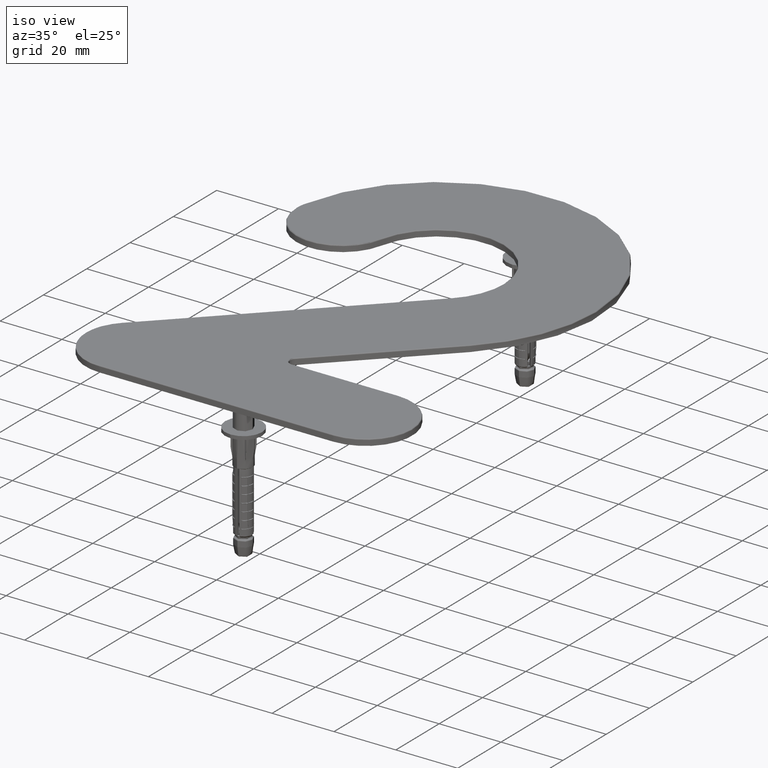
[diagram: clean part render]
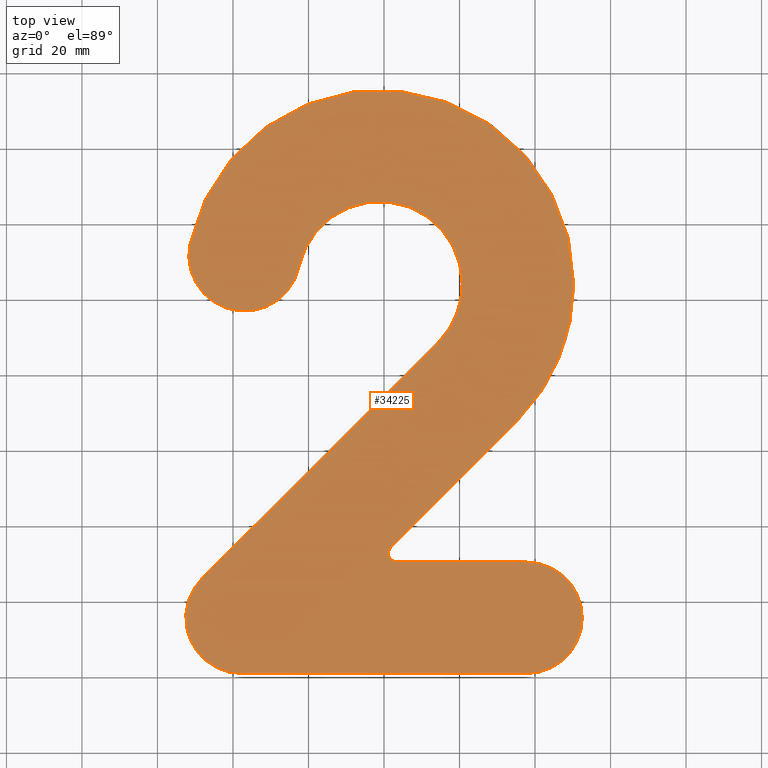
[diagram: tour spotlight — one face highlighted and labeled with its STEP entity id]
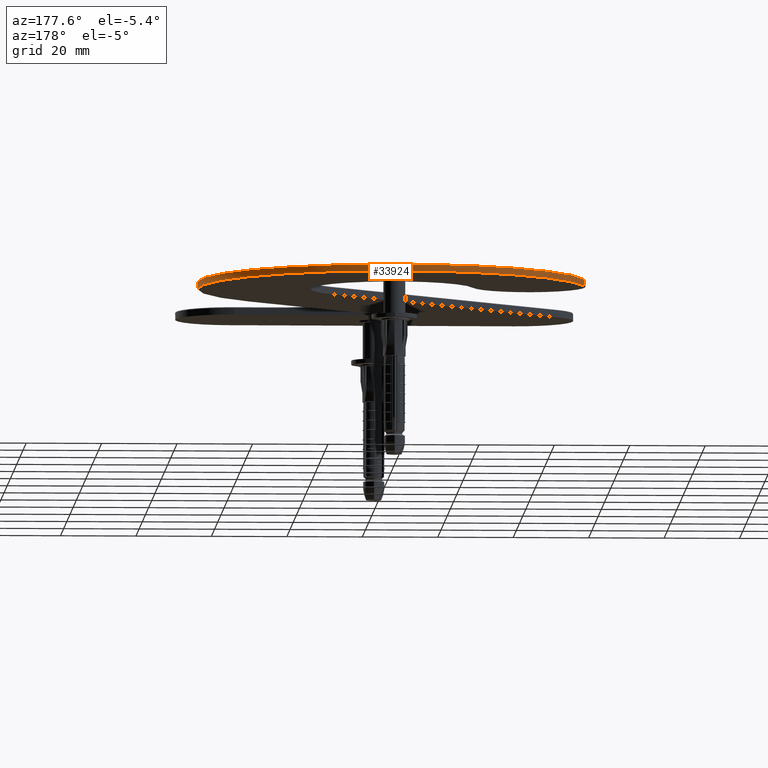
[diagram: tour spotlight — one face highlighted and labeled with its STEP entity id]
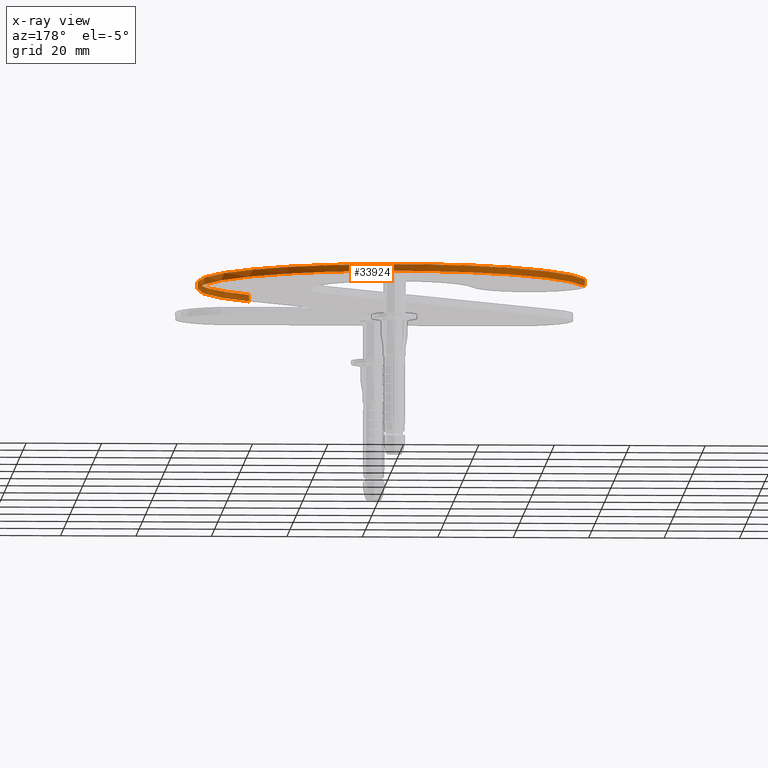
[diagram: x-ray of the same camera — body ghosted, this tour face saturated]
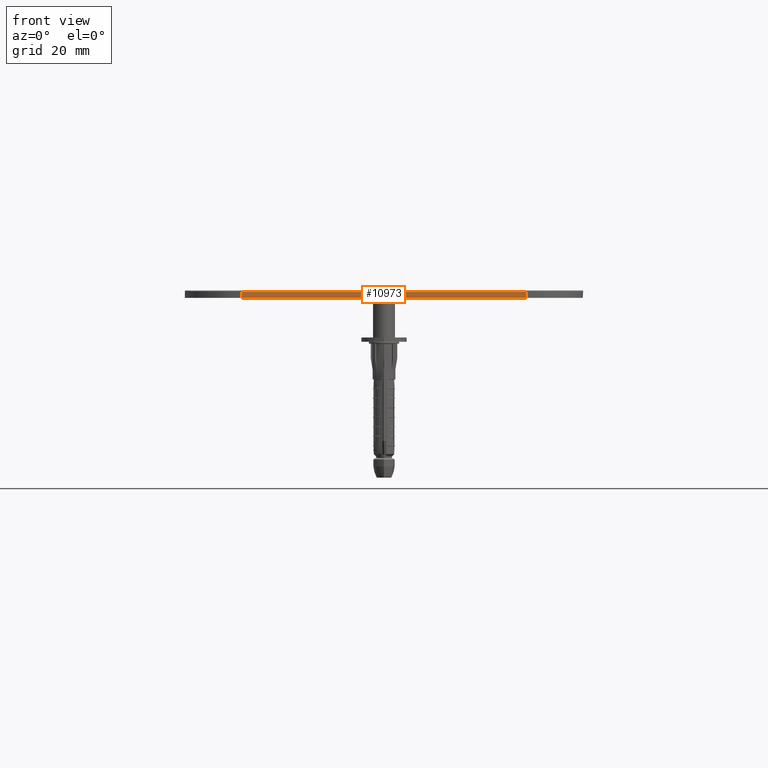
[diagram: tour spotlight — one face highlighted and labeled with its STEP entity id]
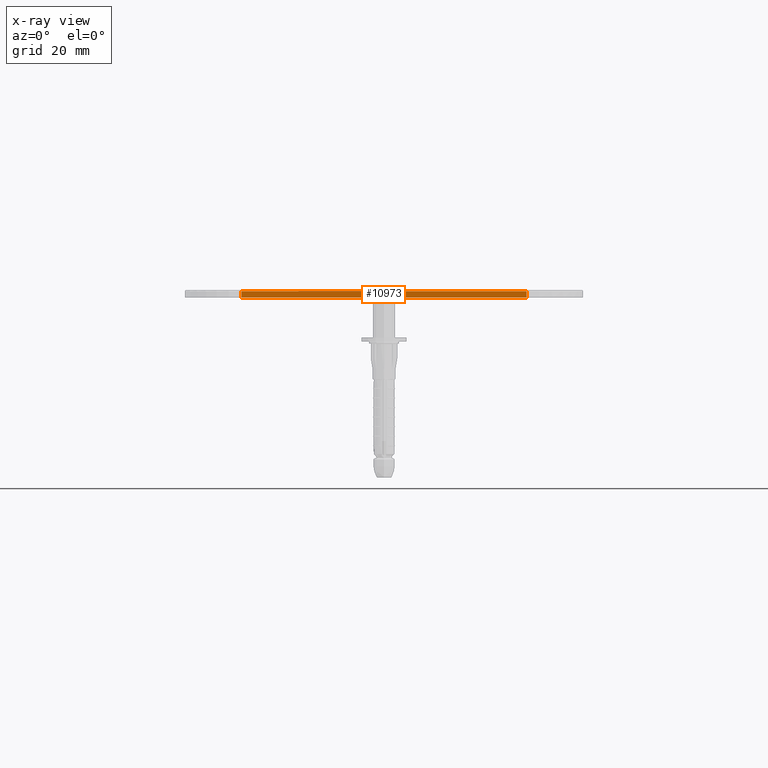
[diagram: x-ray of the same camera — body ghosted, this tour face saturated]
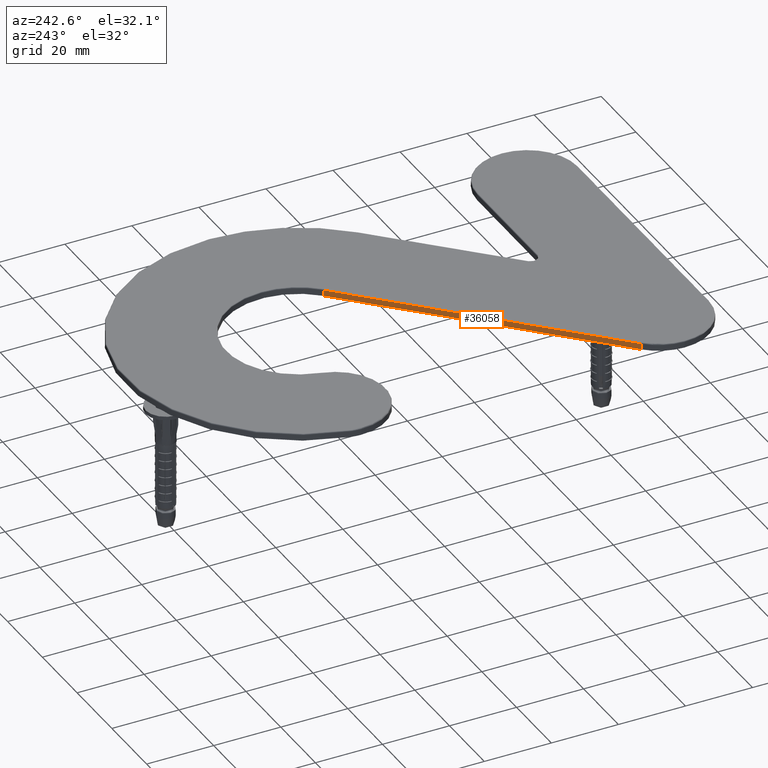
[diagram: tour spotlight — one face highlighted and labeled with its STEP entity id]
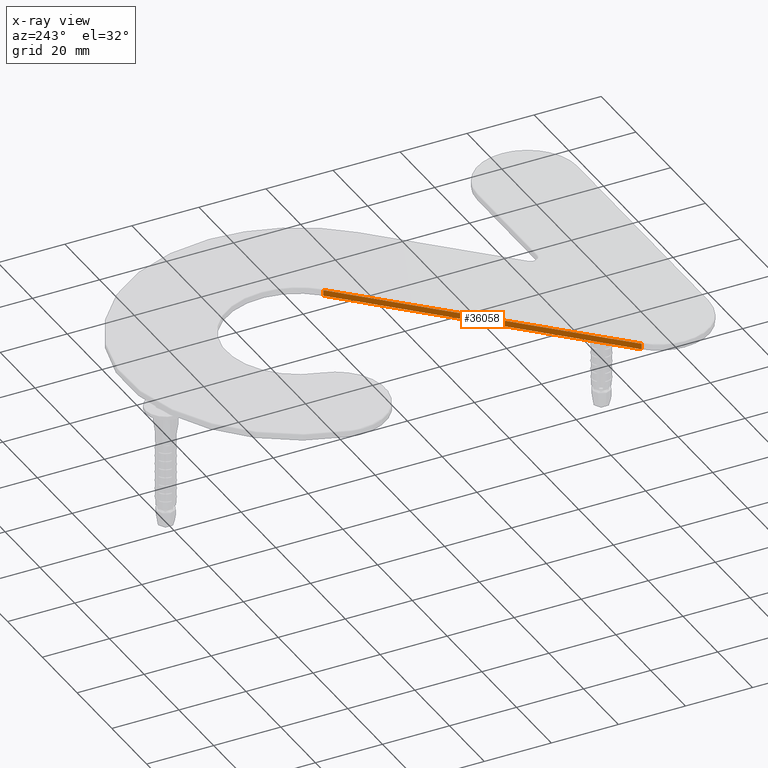
[diagram: x-ray of the same camera — body ghosted, this tour face saturated]
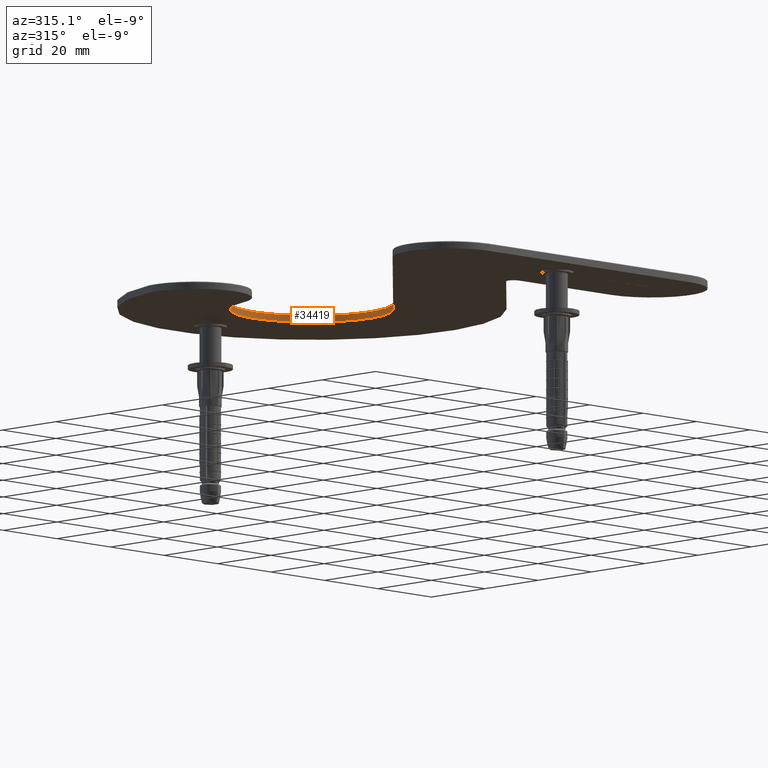
[diagram: tour spotlight — one face highlighted and labeled with its STEP entity id]
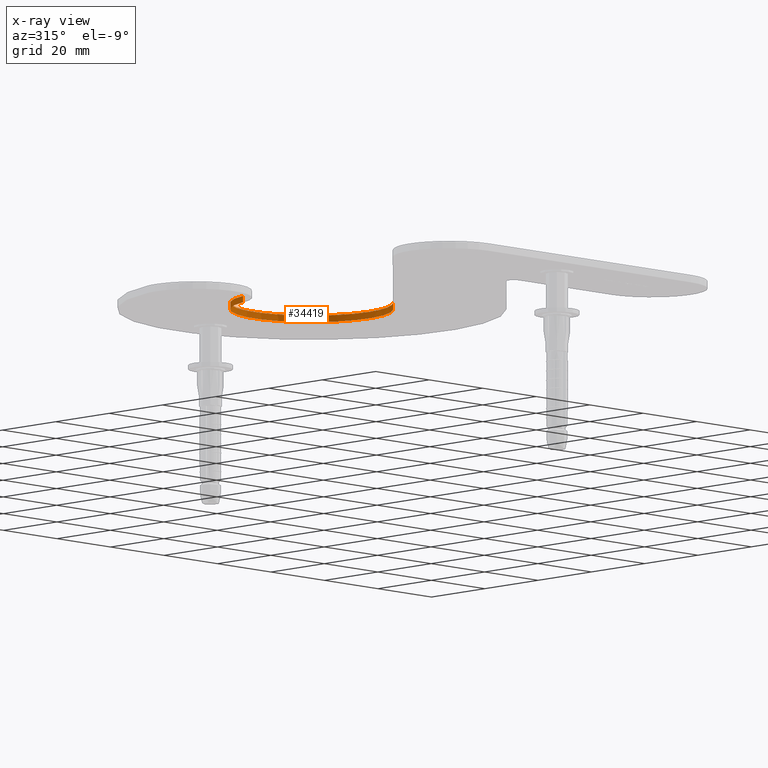
[diagram: x-ray of the same camera — body ghosted, this tour face saturated]
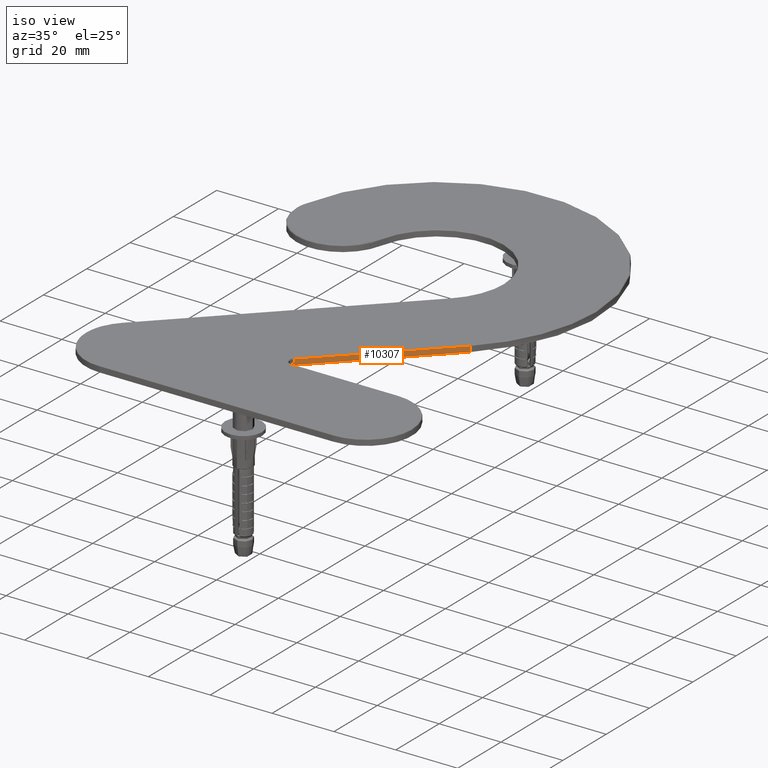
[diagram: tour spotlight — one face highlighted and labeled with its STEP entity id]
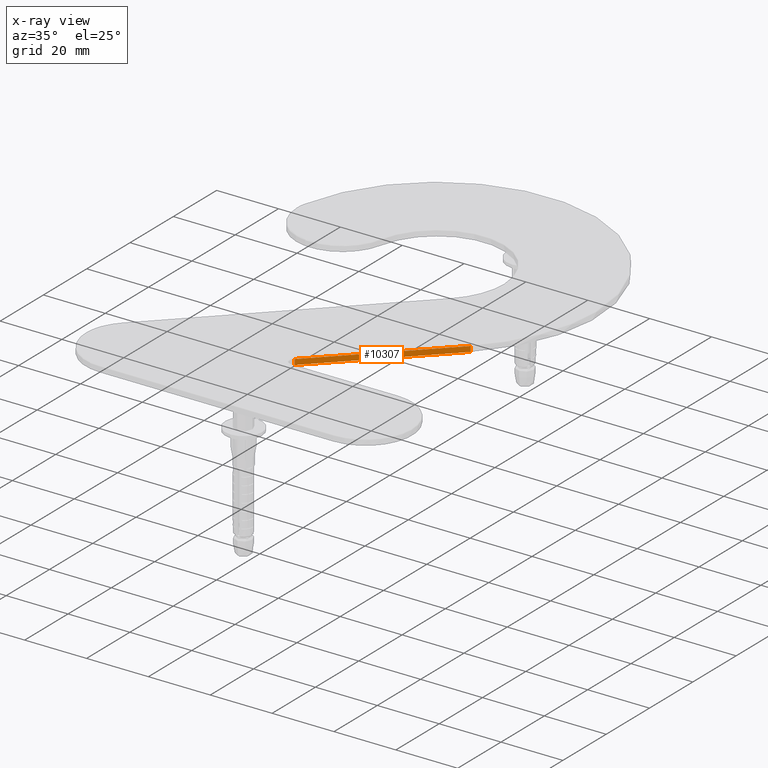
[diagram: x-ray of the same camera — body ghosted, this tour face saturated]
A machine part: a face-by-face anatomy tour. The part has 1559 B-rep faces; the first image is the clean iso view, then the 6 largest visible faces are spotlighted one at a time (largest first), each with its STEP entity span.

Face 1 — top view, entity #34225. In plain terms, the highlighted planar face has unit normal (0, 0, 1).
Definition (entity closure, byte-faithful):
#1106 = CARTESIAN_POINT ( 'NONE',  ( 3.291630560342918344, 32.00000000000000711, 2.000000000000000000 ) ) ;
#1127 = CARTESIAN_POINT ( 'NONE',  ( 52.50000000000000000, 15.00000000000000711, 2.000000000000000000 ) ) ;
#1165 = CIRCLE ( 'NONE', #24346, 2.249999999999999556 ) ;
#1690 = CIRCLE ( 'NONE', #5926, 14.75000000000000000 ) ;
#1903 = CARTESIAN_POINT ( 'NONE',  ( 0.000000000000000000, 0.000000000000000000, 2.000000000000000000 ) ) ;
#2005 = ORIENTED_EDGE ( 'NONE', *, *, #35725, .T. ) ;
#2267 = CARTESIAN_POINT ( 'NONE',  ( -1.138347648318270178, 103.3883476483182591, 2.000000000000000000 ) ) ;
#2568 = LINE ( 'NONE', #36824, #25669 ) ;
#3016 = CIRCLE ( 'NONE', #8227, 14.75000000000000533 ) ;
#3457 = FACE_OUTER_BOUND ( 'NONE', #37412, .T. ) ;
#3652 = EDGE_CURVE ( 'NONE', #6149, #27083, #15410, .T. ) ;
#4770 = DIRECTION ( 'NONE',  ( 1.000000000000000000, 0.000000000000000000, 0.000000000000000000 ) ) ;
#4832 = DIRECTION ( 'NONE',  ( -0.000000000000000000, 0.000000000000000000, 1.000000000000000000 ) ) ;
#5926 = AXIS2_PLACEMENT_3D ( 'NONE', #7502, #15928, #34381 ) ;
#6149 = VERTEX_POINT ( 'NONE', #31711 ) ;
#6386 = CARTESIAN_POINT ( 'NONE',  ( 35.17982502250172416, 67.07017497749789925, 2.000000000000000000 ) ) ;
#6876 = EDGE_CURVE ( 'NONE', #16191, #28079, #3016, .T. ) ;
#7502 = CARTESIAN_POINT ( 'NONE',  ( 37.75000000000000000, 15.00000000000000711, 2.000000000000000000 ) ) ;
#7694 = CIRCLE ( 'NONE', #12227, 21.86165235168176224 ) ;
#7795 = VERTEX_POINT ( 'NONE', #20710 ) ;
#8013 = ORIENTED_EDGE ( 'NONE', *, *, #10338, .T. ) ;
#8227 = AXIS2_PLACEMENT_3D ( 'NONE', #25760, #4832, #13654 ) ;
#8693 = CARTESIAN_POINT ( 'NONE',  ( 3.291630560342965861, 29.75000000000000711, 2.000000000000000000 ) ) ;
#8987 = CARTESIAN_POINT ( 'NONE',  ( -1.138347648318270178, 103.3883476483182591, 2.000000000000000000 ) ) ;
#9251 = DIRECTION ( 'NONE',  ( -0.000000000000000000, 0.000000000000000000, 1.000000000000000000 ) ) ;
#9557 = LINE ( 'NONE', #38307, #13746 ) ;
#9817 = VECTOR ( 'NONE', #16314, 1000.000000000000000 ) ;
#10338 = EDGE_CURVE ( 'NONE', #12283, #26212, #22215, .T. ) ;
#10423 = VECTOR ( 'NONE', #11957, 1000.000000000000000 ) ;
#11074 = CARTESIAN_POINT ( 'NONE',  ( -1.138347648318270178, 103.3883476483182591, 2.000000000000000000 ) ) ;
#11637 = EDGE_CURVE ( 'NONE', #27083, #22879, #17981, .T. ) ;
#11957 = DIRECTION ( 'NONE',  ( -1.000000000000000000, 0.000000000000000000, 0.000000000000000000 ) ) ;
#12227 = AXIS2_PLACEMENT_3D ( 'NONE', #34495, #34363, #13417 ) ;
#12283 = VERTEX_POINT ( 'NONE', #26948 ) ;
#12365 = CARTESIAN_POINT ( 'NONE',  ( 37.75000000000000000, 0.2500000000000102696, 2.000000000000000000 ) ) ;
#12913 = CARTESIAN_POINT ( 'NONE',  ( 35.17982502250172416, 67.07017497749789925, 2.000000000000000000 ) ) ;
#13061 = CIRCLE ( 'NONE', #28028, 21.86165235168176224 ) ;
#13085 = PLANE ( 'NONE',  #21304 ) ;
#13230 = DIRECTION ( 'NONE',  ( 0.000000000000000000, -0.000000000000000000, -1.000000000000000000 ) ) ;
#13297 = ORIENTED_EDGE ( 'NONE', *, *, #33257, .T. ) ;
#13346 = VERTEX_POINT ( 'NONE', #28656 ) ;
#13417 = DIRECTION ( 'NONE',  ( 1.000000000000000000, 0.000000000000000000, 0.000000000000000000 ) ) ;
#13451 = ORIENTED_EDGE ( 'NONE', *, *, #30766, .T. ) ;
#13654 = DIRECTION ( 'NONE',  ( 1.000000000000000000, 0.000000000000000000, 0.000000000000000000 ) ) ;
#13746 = VECTOR ( 'NONE', #20308, 1000.000000000000114 ) ;
#13955 = DIRECTION ( 'NONE',  ( 0.000000000000000000, -0.000000000000000000, -1.000000000000000000 ) ) ;
#14274 = AXIS2_PLACEMENT_3D ( 'NONE', #34661, #37664, #19674 ) ;
#14285 = DIRECTION ( 'NONE',  ( 1.000000000000000000, 0.000000000000000000, 0.000000000000000000 ) ) ;
#14425 = CARTESIAN_POINT ( 'NONE',  ( -36.95001943835819702, 110.9999999999999858, 2.000000000000000000 ) ) ;
#15211 = VERTEX_POINT ( 'NONE', #12365 ) ;
#15331 = EDGE_CURVE ( 'NONE', #22879, #7795, #22074, .T. ) ;
#15410 = LINE ( 'NONE', #12913, #9817 ) ;
#15702 = AXIS2_PLACEMENT_3D ( 'NONE', #8987, #9251, #30291 ) ;
#15928 = DIRECTION ( 'NONE',  ( -0.000000000000000000, 0.000000000000000000, 1.000000000000000000 ) ) ;
#16191 = VERTEX_POINT ( 'NONE', #34970 ) ;
#16314 = DIRECTION ( 'NONE',  ( 0.7071067811865514585, 0.7071067811865435759, 0.000000000000000000 ) ) ;
#16476 = EDGE_CURVE ( 'NONE', #38662, #12283, #1690, .T. ) ;
#17210 = CARTESIAN_POINT ( 'NONE',  ( 14.32017497749864354, 87.92982502250116283, 2.000000000000000000 ) ) ;
#17449 = DIRECTION ( 'NONE',  ( 1.000000000000000000, 0.000000000000000000, 0.000000000000000000 ) ) ;
#17627 = EDGE_CURVE ( 'NONE', #26212, #6149, #1165, .T. ) ;
#17981 = CIRCLE ( 'NONE', #19195, 51.36165235168176224 ) ;
#18331 = CARTESIAN_POINT ( 'NONE',  ( -37.75000000000000000, 0.2499999999999894251, 2.000000000000000000 ) ) ;
#18837 = ORIENTED_EDGE ( 'NONE', *, *, #34653, .T. ) ;
#19195 = AXIS2_PLACEMENT_3D ( 'NONE', #2267, #26783, #17449 ) ;
#19570 = ORIENTED_EDGE ( 'NONE', *, *, #28827, .T. ) ;
#19674 = DIRECTION ( 'NONE',  ( 1.000000000000000000, 0.000000000000000000, 0.000000000000000000 ) ) ;
#20308 = DIRECTION ( 'NONE',  ( -0.7071067811865513475, -0.7071067811865436870, -0.000000000000000000 ) ) ;
#20624 = DIRECTION ( 'NONE',  ( -0.000000000000000000, 0.000000000000000000, 1.000000000000000000 ) ) ;
#20710 = CARTESIAN_POINT ( 'NONE',  ( -51.37772550934152349, 114.0665611895592804, 2.000000000000000000 ) ) ;
#21304 = AXIS2_PLACEMENT_3D ( 'NONE', #1903, #34911, #4770 ) ;
#21401 = ORIENTED_EDGE ( 'NONE', *, *, #3652, .T. ) ;
#21534 = ORIENTED_EDGE ( 'NONE', *, *, #16476, .T. ) ;
#21542 = ORIENTED_EDGE ( 'NONE', *, *, #17627, .T. ) ;
#22074 = CIRCLE ( 'NONE', #15702, 51.36165235168176224 ) ;
#22215 = LINE ( 'NONE', #8693, #10423 ) ;
#22639 = ORIENTED_EDGE ( 'NONE', *, *, #15331, .T. ) ;
#22879 = VERTEX_POINT ( 'NONE', #27081 ) ;
#24346 = AXIS2_PLACEMENT_3D ( 'NONE', #1106, #13230, #25467 ) ;
#25467 = DIRECTION ( 'NONE',  ( 1.000000000000000000, 0.000000000000000000, 0.000000000000000000 ) ) ;
#25669 = VECTOR ( 'NONE', #36565, 1000.000000000000000 ) ;
#25760 = CARTESIAN_POINT ( 'NONE',  ( -37.75000000000000000, 14.99999999999999645, 2.000000000000000000 ) ) ;
#26016 = CIRCLE ( 'NONE', #33162, 14.74999999999999645 ) ;
#26212 = VERTEX_POINT ( 'NONE', #34168 ) ;
#26587 = CARTESIAN_POINT ( 'NONE',  ( -22.52231336737489897, 107.9334388104406486, 2.000000000000000000 ) ) ;
#26783 = DIRECTION ( 'NONE',  ( -0.000000000000000000, 0.000000000000000000, 1.000000000000000000 ) ) ;
#26817 = ORIENTED_EDGE ( 'NONE', *, *, #35258, .T. ) ;
#26948 = CARTESIAN_POINT ( 'NONE',  ( 37.75000000000000000, 29.75000000000000711, 2.000000000000000000 ) ) ;
#27081 = CARTESIAN_POINT ( 'NONE',  ( 50.22330470336348895, 103.3883476483182591, 2.000000000000000000 ) ) ;
#27083 = VERTEX_POINT ( 'NONE', #6386 ) ;
#28028 = AXIS2_PLACEMENT_3D ( 'NONE', #11074, #13955, #32006 ) ;
#28079 = VERTEX_POINT ( 'NONE', #18331 ) ;
#28423 = ORIENTED_EDGE ( 'NONE', *, *, #11637, .T. ) ;
#28656 = CARTESIAN_POINT ( 'NONE',  ( 20.72330470336348895, 103.3883476483182591, 2.000000000000000000 ) ) ;
#28827 = EDGE_CURVE ( 'NONE', #15211, #38662, #36165, .T. ) ;
#30207 = VERTEX_POINT ( 'NONE', #17210 ) ;
#30291 = DIRECTION ( 'NONE',  ( 1.000000000000000000, 0.000000000000000000, 0.000000000000000000 ) ) ;
#30766 = EDGE_CURVE ( 'NONE', #33083, #13346, #13061, .T. ) ;
#31711 = CARTESIAN_POINT ( 'NONE',  ( 1.700640302673228410, 33.59099025766978031, 2.000000000000000000 ) ) ;
#32006 = DIRECTION ( 'NONE',  ( 1.000000000000000000, 0.000000000000000000, 0.000000000000000000 ) ) ;
#32561 = ORIENTED_EDGE ( 'NONE', *, *, #6876, .T. ) ;
#33083 = VERTEX_POINT ( 'NONE', #26587 ) ;
#33162 = AXIS2_PLACEMENT_3D ( 'NONE', #14425, #20624, #14285 ) ;
#33257 = EDGE_CURVE ( 'NONE', #28079, #15211, #2568, .T. ) ;
#34168 = CARTESIAN_POINT ( 'NONE',  ( 3.291630560342965861, 29.75000000000001066, 2.000000000000000000 ) ) ;
#34225 = ADVANCED_FACE ( 'NONE', ( #3457 ), #13085, .T. ) ;
#34363 = DIRECTION ( 'NONE',  ( 0.000000000000000000, -0.000000000000000000, -1.000000000000000000 ) ) ;
#34381 = DIRECTION ( 'NONE',  ( 1.000000000000000000, 0.000000000000000000, 0.000000000000000000 ) ) ;
#34495 = CARTESIAN_POINT ( 'NONE',  ( -1.138347648318270178, 103.3883476483182591, 2.000000000000000000 ) ) ;
#34653 = EDGE_CURVE ( 'NONE', #13346, #30207, #7694, .T. ) ;
#34661 = CARTESIAN_POINT ( 'NONE',  ( 37.75000000000000000, 15.00000000000000711, 2.000000000000000000 ) ) ;
#34911 = DIRECTION ( 'NONE',  ( -0.000000000000000000, 0.000000000000000000, 1.000000000000000000 ) ) ;
#34970 = CARTESIAN_POINT ( 'NONE',  ( -48.17982502250153232, 25.42982502250162824, 2.000000000000000000 ) ) ;
#35258 = EDGE_CURVE ( 'NONE', #7795, #33083, #26016, .T. ) ;
#35725 = EDGE_CURVE ( 'NONE', #30207, #16191, #9557, .T. ) ;
#36165 = CIRCLE ( 'NONE', #14274, 14.75000000000000000 ) ;
#36565 = DIRECTION ( 'NONE',  ( 1.000000000000000000, 1.838117590439000914E-16, -0.000000000000000000 ) ) ;
#36824 = CARTESIAN_POINT ( 'NONE',  ( -4.595293976097563299E-17, 0.2500000000000033307, 2.000000000000000000 ) ) ;
#37412 = EDGE_LOOP ( 'NONE', ( #19570, #21534, #8013, #21542, #21401, #28423, #22639, #26817, #13451, #18837, #2005, #32561, #13297 ) ) ;
#37664 = DIRECTION ( 'NONE',  ( -0.000000000000000000, 0.000000000000000000, 1.000000000000000000 ) ) ;
#38307 = CARTESIAN_POINT ( 'NONE',  ( -36.80482502250131915, 36.80482502250172416, 2.000000000000000000 ) ) ;
#38662 = VERTEX_POINT ( 'NONE', #1127 ) ;

Face 2 — auxiliary view, entity #33924. An x-ray twin of the same camera follows (body ghosted, this face saturated) — the face is partly hidden behind the body. In plain terms, the highlighted cylindrical surface (partial cylindrical patch) has radius 51.6117 mm, axis along (-0, -0, -1).
Definition (entity closure, byte-faithful):
#1199 = CIRCLE ( 'NONE', #5057, 51.61165235168176224 ) ;
#3013 = CARTESIAN_POINT ( 'NONE',  ( 50.47330470336348895, 103.3883476483182591, 1.750000000000000000 ) ) ;
#3596 = CIRCLE ( 'NONE', #19972, 51.61165235168176224 ) ;
#5057 = AXIS2_PLACEMENT_3D ( 'NONE', #27389, #30429, #24201 ) ;
#5667 = DIRECTION ( 'NONE',  ( 1.000000000000000000, 0.000000000000000000, 0.000000000000000000 ) ) ;
#5891 = CARTESIAN_POINT ( 'NONE',  ( 35.35660171779834826, 66.89339828220127515, 2.000000000000000000 ) ) ;
#6171 = ORIENTED_EDGE ( 'NONE', *, *, #7253, .T. ) ;
#7253 = EDGE_CURVE ( 'NONE', #31794, #19600, #30842, .T. ) ;
#11218 = ORIENTED_EDGE ( 'NONE', *, *, #31424, .T. ) ;
#12330 = DIRECTION ( 'NONE',  ( -0.000000000000000000, -0.000000000000000000, -1.000000000000000000 ) ) ;
#13099 = EDGE_CURVE ( 'NONE', #30059, #18964, #35770, .T. ) ;
#14959 = DIRECTION ( 'NONE',  ( -0.000000000000000000, -0.000000000000000000, -1.000000000000000000 ) ) ;
#15555 = CARTESIAN_POINT ( 'NONE',  ( -51.62226290037514786, 114.1185368029416338, 0.000000000000000000 ) ) ;
#17989 = DIRECTION ( 'NONE',  ( -1.000000000000000000, 0.000000000000000000, 0.000000000000000000 ) ) ;
#18194 = VERTEX_POINT ( 'NONE', #3013 ) ;
#18620 = VECTOR ( 'NONE', #12330, 1000.000000000000000 ) ;
#18964 = VERTEX_POINT ( 'NONE', #15555 ) ;
#19600 = VERTEX_POINT ( 'NONE', #23819 ) ;
#19972 = AXIS2_PLACEMENT_3D ( 'NONE', #32787, #30043, #5667 ) ;
#21058 = CARTESIAN_POINT ( 'NONE',  ( 35.35660171779834826, 66.89339828220127515, 1.750000000000000000 ) ) ;
#22333 = CARTESIAN_POINT ( 'NONE',  ( -1.138347648318270178, 103.3883476483182591, 1.750000000000000000 ) ) ;
#23059 = EDGE_CURVE ( 'NONE', #30059, #18194, #27848, .T. ) ;
#23819 = CARTESIAN_POINT ( 'NONE',  ( 35.35660171779834826, 66.89339828220127515, 0.000000000000000000 ) ) ;
#24201 = DIRECTION ( 'NONE',  ( 1.000000000000000000, 0.000000000000000000, 0.000000000000000000 ) ) ;
#24928 = VECTOR ( 'NONE', #35393, 1000.000000000000000 ) ;
#25447 = DIRECTION ( 'NONE',  ( 0.000000000000000000, -0.000000000000000000, -1.000000000000000000 ) ) ;
#26013 = ORIENTED_EDGE ( 'NONE', *, *, #13099, .F. ) ;
#27389 = CARTESIAN_POINT ( 'NONE',  ( -1.138347648318270178, 103.3883476483182591, 1.750000000000000000 ) ) ;
#27848 = CIRCLE ( 'NONE', #37328, 51.61165235168176224 ) ;
#27992 = CYLINDRICAL_SURFACE ( 'NONE', #38681, 51.61165235168176224 ) ;
#30043 = DIRECTION ( 'NONE',  ( -0.000000000000000000, 0.000000000000000000, 1.000000000000000000 ) ) ;
#30059 = VERTEX_POINT ( 'NONE', #37728 ) ;
#30429 = DIRECTION ( 'NONE',  ( 0.000000000000000000, -0.000000000000000000, -1.000000000000000000 ) ) ;
#30842 = LINE ( 'NONE', #5891, #18620 ) ;
#31424 = EDGE_CURVE ( 'NONE', #19600, #18964, #3596, .T. ) ;
#31516 = DIRECTION ( 'NONE',  ( 1.000000000000000000, 0.000000000000000000, 0.000000000000000000 ) ) ;
#31527 = EDGE_CURVE ( 'NONE', #18194, #31794, #1199, .T. ) ;
#31794 = VERTEX_POINT ( 'NONE', #21058 ) ;
#32787 = CARTESIAN_POINT ( 'NONE',  ( -1.138347648318270178, 103.3883476483182591, 0.000000000000000000 ) ) ;
#33924 = ADVANCED_FACE ( 'NONE', ( #38316 ), #27992, .T. ) ;
#34541 = EDGE_LOOP ( 'NONE', ( #26013, #34682, #38259, #6171, #11218 ) ) ;
#34682 = ORIENTED_EDGE ( 'NONE', *, *, #23059, .T. ) ;
#35393 = DIRECTION ( 'NONE',  ( -0.000000000000000000, -0.000000000000000000, -1.000000000000000000 ) ) ;
#35770 = LINE ( 'NONE', #38279, #24928 ) ;
#35859 = CARTESIAN_POINT ( 'NONE',  ( -1.138347648318270178, 103.3883476483182591, 2.000000000000000000 ) ) ;
#37328 = AXIS2_PLACEMENT_3D ( 'NONE', #22333, #25447, #31516 ) ;
#37728 = CARTESIAN_POINT ( 'NONE',  ( -51.62226290037514786, 114.1185368029416338, 1.750000000000000000 ) ) ;
#38259 = ORIENTED_EDGE ( 'NONE', *, *, #31527, .T. ) ;
#38279 = CARTESIAN_POINT ( 'NONE',  ( -51.62226290037514786, 114.1185368029416338, 2.000000000000000000 ) ) ;
#38316 = FACE_OUTER_BOUND ( 'NONE', #34541, .T. ) ;
#38681 = AXIS2_PLACEMENT_3D ( 'NONE', #35859, #14959, #17989 ) ;

Face 3 — front view, entity #10973. An x-ray twin of the same camera follows (body ghosted, this face saturated) — the face is partly hidden behind the body. In plain terms, the highlighted planar face has unit normal (0, -1, 0).
Definition (entity closure, byte-faithful):
#600 = EDGE_CURVE ( 'NONE', #14902, #23366, #9661, .T. ) ;
#1132 = CARTESIAN_POINT ( 'NONE',  ( -37.75000000000000000, -3.632421468846098935E-15, 2.000000000000000000 ) ) ;
#4322 = DIRECTION ( 'NONE',  ( 1.000000000000000000, 1.838117590439000914E-16, 0.000000000000000000 ) ) ;
#4527 = EDGE_CURVE ( 'NONE', #23366, #23552, #21571, .T. ) ;
#4980 = VERTEX_POINT ( 'NONE', #21146 ) ;
#6565 = DIRECTION ( 'NONE',  ( -1.000000000000000000, -1.838117590439000914E-16, 0.000000000000000000 ) ) ;
#6855 = CARTESIAN_POINT ( 'NONE',  ( 37.75000000000000000, 1.024536633896835782E-14, 2.000000000000000000 ) ) ;
#9661 = LINE ( 'NONE', #33639, #25633 ) ;
#9784 = ORIENTED_EDGE ( 'NONE', *, *, #28887, .F. ) ;
#10973 = ADVANCED_FACE ( 'NONE', ( #18487 ), #34092, .T. ) ;
#12900 = DIRECTION ( 'NONE',  ( -0.000000000000000000, -0.000000000000000000, -1.000000000000000000 ) ) ;
#12904 = DIRECTION ( 'NONE',  ( 1.838117590439000914E-16, -1.000000000000000000, 0.000000000000000000 ) ) ;
#13326 = EDGE_CURVE ( 'NONE', #4980, #23552, #16278, .T. ) ;
#13426 = CARTESIAN_POINT ( 'NONE',  ( 37.75000000000000000, 1.024536633896835782E-14, 1.750000000000000000 ) ) ;
#14902 = VERTEX_POINT ( 'NONE', #13426 ) ;
#15494 = CARTESIAN_POINT ( 'NONE',  ( -6.077685145187539471E-31, 3.306472435061129443E-15, 0.000000000000000000 ) ) ;
#15861 = AXIS2_PLACEMENT_3D ( 'NONE', #34489, #12904, #4322 ) ;
#16278 = LINE ( 'NONE', #15494, #37935 ) ;
#16373 = ORIENTED_EDGE ( 'NONE', *, *, #600, .T. ) ;
#18289 = LINE ( 'NONE', #6855, #19730 ) ;
#18487 = FACE_OUTER_BOUND ( 'NONE', #25487, .T. ) ;
#19098 = CARTESIAN_POINT ( 'NONE',  ( -37.75000000000000000, -3.632421468846098935E-15, 0.000000000000000000 ) ) ;
#19481 = DIRECTION ( 'NONE',  ( -0.000000000000000000, -0.000000000000000000, -1.000000000000000000 ) ) ;
#19730 = VECTOR ( 'NONE', #12900, 1000.000000000000000 ) ;
#21146 = CARTESIAN_POINT ( 'NONE',  ( 37.75000000000000000, 1.024536633896835782E-14, 0.000000000000000000 ) ) ;
#21571 = LINE ( 'NONE', #1132, #27190 ) ;
#23366 = VERTEX_POINT ( 'NONE', #29646 ) ;
#23552 = VERTEX_POINT ( 'NONE', #19098 ) ;
#25487 = EDGE_LOOP ( 'NONE', ( #9784, #16373, #34779, #35664 ) ) ;
#25633 = VECTOR ( 'NONE', #27852, 1000.000000000000000 ) ;
#27190 = VECTOR ( 'NONE', #19481, 1000.000000000000000 ) ;
#27852 = DIRECTION ( 'NONE',  ( -1.000000000000000000, -1.838117590439000914E-16, 0.000000000000000000 ) ) ;
#28887 = EDGE_CURVE ( 'NONE', #14902, #4980, #18289, .T. ) ;
#29646 = CARTESIAN_POINT ( 'NONE',  ( -37.75000000000000000, -3.632421468846098935E-15, 1.750000000000000000 ) ) ;
#33639 = CARTESIAN_POINT ( 'NONE',  ( -6.077685145187539471E-31, 3.306472435061129443E-15, 1.750000000000000000 ) ) ;
#34092 = PLANE ( 'NONE',  #15861 ) ;
#34489 = CARTESIAN_POINT ( 'NONE',  ( -6.077685145187539471E-31, 3.306472435061129443E-15, 2.000000000000000000 ) ) ;
#34779 = ORIENTED_EDGE ( 'NONE', *, *, #4527, .T. ) ;
#35664 = ORIENTED_EDGE ( 'NONE', *, *, #13326, .F. ) ;
#37935 = VECTOR ( 'NONE', #6565, 1000.000000000000000 ) ;

Face 4 — auxiliary view, entity #36058. An x-ray twin of the same camera follows (body ghosted, this face saturated) — the face is partly hidden behind the body. In plain terms, the highlighted planar face has unit normal (-0.7071, 0.7071, 0).
Definition (entity closure, byte-faithful):
#92 = EDGE_CURVE ( 'NONE', #26561, #9842, #21928, .T. ) ;
#179 = VERTEX_POINT ( 'NONE', #30404 ) ;
#1985 = CARTESIAN_POINT ( 'NONE',  ( 14.14339828220202655, 88.10660171779778693, 1.750000000000000000 ) ) ;
#2072 = VECTOR ( 'NONE', #9114, 1000.000000000000000 ) ;
#2585 = CARTESIAN_POINT ( 'NONE',  ( -36.98160171779795746, 36.98160171779834826, 2.000000000000000000 ) ) ;
#4270 = CARTESIAN_POINT ( 'NONE',  ( -48.35660171779817063, 25.60660171779826655, 1.750000000000000000 ) ) ;
#9114 = DIRECTION ( 'NONE',  ( -0.000000000000000000, -0.000000000000000000, -1.000000000000000000 ) ) ;
#9842 = VERTEX_POINT ( 'NONE', #36747 ) ;
#11458 = CARTESIAN_POINT ( 'NONE',  ( -48.35660171779817063, 25.60660171779826655, 2.000000000000000000 ) ) ;
#12001 = DIRECTION ( 'NONE',  ( 0.7071067811865513475, 0.7071067811865436870, 0.000000000000000000 ) ) ;
#12550 = ORIENTED_EDGE ( 'NONE', *, *, #25676, .F. ) ;
#13702 = VECTOR ( 'NONE', #32523, 1000.000000000000000 ) ;
#13970 = EDGE_LOOP ( 'NONE', ( #24143, #33402, #17675, #12550 ) ) ;
#14472 = DIRECTION ( 'NONE',  ( -0.7071067811865436870, 0.7071067811865513475, 0.000000000000000000 ) ) ;
#17375 = LINE ( 'NONE', #20986, #27278 ) ;
#17675 = ORIENTED_EDGE ( 'NONE', *, *, #92, .T. ) ;
#17701 = VERTEX_POINT ( 'NONE', #4270 ) ;
#20948 = PLANE ( 'NONE',  #37688 ) ;
#20986 = CARTESIAN_POINT ( 'NONE',  ( -36.98160171779795746, 36.98160171779834826, 1.750000000000000000 ) ) ;
#21075 = CARTESIAN_POINT ( 'NONE',  ( 14.14339828220202655, 88.10660171779778693, 2.000000000000000000 ) ) ;
#21928 = LINE ( 'NONE', #21075, #2072 ) ;
#22621 = EDGE_CURVE ( 'NONE', #17701, #179, #36317, .T. ) ;
#22665 = LINE ( 'NONE', #32672, #33935 ) ;
#24143 = ORIENTED_EDGE ( 'NONE', *, *, #22621, .F. ) ;
#25676 = EDGE_CURVE ( 'NONE', #179, #9842, #22665, .T. ) ;
#26561 = VERTEX_POINT ( 'NONE', #1985 ) ;
#27278 = VECTOR ( 'NONE', #12001, 1000.000000000000114 ) ;
#27912 = EDGE_CURVE ( 'NONE', #17701, #26561, #17375, .T. ) ;
#30022 = DIRECTION ( 'NONE',  ( -0.7071067811865513475, -0.7071067811865436870, 0.000000000000000000 ) ) ;
#30404 = CARTESIAN_POINT ( 'NONE',  ( -48.35660171779817063, 25.60660171779826655, 0.000000000000000000 ) ) ;
#31656 = FACE_OUTER_BOUND ( 'NONE', #13970, .T. ) ;
#32523 = DIRECTION ( 'NONE',  ( -0.000000000000000000, -0.000000000000000000, -1.000000000000000000 ) ) ;
#32672 = CARTESIAN_POINT ( 'NONE',  ( -36.98160171779795746, 36.98160171779834826, 0.000000000000000000 ) ) ;
#33402 = ORIENTED_EDGE ( 'NONE', *, *, #27912, .T. ) ;
#33935 = VECTOR ( 'NONE', #35425, 1000.000000000000000 ) ;
#35425 = DIRECTION ( 'NONE',  ( 0.7071067811865513475, 0.7071067811865437980, 0.000000000000000000 ) ) ;
#36058 = ADVANCED_FACE ( 'NONE', ( #31656 ), #20948, .T. ) ;
#36317 = LINE ( 'NONE', #11458, #13702 ) ;
#36747 = CARTESIAN_POINT ( 'NONE',  ( 14.14339828220202655, 88.10660171779778693, 0.000000000000000000 ) ) ;
#37688 = AXIS2_PLACEMENT_3D ( 'NONE', #2585, #14472, #30022 ) ;

Face 5 — auxiliary view, entity #34419. An x-ray twin of the same camera follows (body ghosted, this face saturated) — the face is partly hidden behind the body. In plain terms, the highlighted cylindrical surface (partial cylindrical patch) has radius 21.6117 mm, axis along (-0, -0, -1).
Definition (entity closure, byte-faithful):
#92 = EDGE_CURVE ( 'NONE', #26561, #9842, #21928, .T. ) ;
#1369 = DIRECTION ( 'NONE',  ( 1.000000000000000000, 0.000000000000000000, 0.000000000000000000 ) ) ;
#1985 = CARTESIAN_POINT ( 'NONE',  ( 14.14339828220202655, 88.10660171779778693, 1.750000000000000000 ) ) ;
#2072 = VECTOR ( 'NONE', #9114, 1000.000000000000000 ) ;
#3548 = EDGE_LOOP ( 'NONE', ( #12598, #18015, #7130, #22432, #7096 ) ) ;
#4640 = CIRCLE ( 'NONE', #33085, 21.61165235168176224 ) ;
#4823 = LINE ( 'NONE', #15199, #35910 ) ;
#7096 = ORIENTED_EDGE ( 'NONE', *, *, #13369, .F. ) ;
#7130 = ORIENTED_EDGE ( 'NONE', *, *, #13422, .T. ) ;
#7334 = CARTESIAN_POINT ( 'NONE',  ( 20.47330470336348895, 103.3883476483182591, 1.750000000000000000 ) ) ;
#8122 = DIRECTION ( 'NONE',  ( -0.000000000000000000, 0.000000000000000000, 1.000000000000000000 ) ) ;
#9114 = DIRECTION ( 'NONE',  ( -0.000000000000000000, -0.000000000000000000, -1.000000000000000000 ) ) ;
#9584 = AXIS2_PLACEMENT_3D ( 'NONE', #9767, #15659, #24868 ) ;
#9621 = CYLINDRICAL_SURFACE ( 'NONE', #12457, 21.61165235168176224 ) ;
#9654 = DIRECTION ( 'NONE',  ( -1.000000000000000000, 0.000000000000000000, 0.000000000000000000 ) ) ;
#9767 = CARTESIAN_POINT ( 'NONE',  ( -1.138347648318270178, 103.3883476483182591, 1.750000000000000000 ) ) ;
#9842 = VERTEX_POINT ( 'NONE', #36747 ) ;
#12457 = AXIS2_PLACEMENT_3D ( 'NONE', #21377, #27286, #9654 ) ;
#12598 = ORIENTED_EDGE ( 'NONE', *, *, #92, .F. ) ;
#12922 = FACE_OUTER_BOUND ( 'NONE', #3548, .T. ) ;
#13369 = EDGE_CURVE ( 'NONE', #9842, #35680, #16512, .T. ) ;
#13382 = VERTEX_POINT ( 'NONE', #7334 ) ;
#13422 = EDGE_CURVE ( 'NONE', #13382, #26005, #4640, .T. ) ;
#13780 = DIRECTION ( 'NONE',  ( 1.000000000000000000, 0.000000000000000000, 0.000000000000000000 ) ) ;
#13972 = CARTESIAN_POINT ( 'NONE',  ( -22.27777597634128526, 107.8814631970582951, 0.000000000000000000 ) ) ;
#15199 = CARTESIAN_POINT ( 'NONE',  ( -22.27777597634128526, 107.8814631970582951, 2.000000000000000000 ) ) ;
#15659 = DIRECTION ( 'NONE',  ( -0.000000000000000000, 0.000000000000000000, 1.000000000000000000 ) ) ;
#16512 = CIRCLE ( 'NONE', #16932, 21.61165235168176224 ) ;
#16932 = AXIS2_PLACEMENT_3D ( 'NONE', #19596, #22376, #1369 ) ;
#16945 = CARTESIAN_POINT ( 'NONE',  ( -1.138347648318270178, 103.3883476483182591, 1.750000000000000000 ) ) ;
#18015 = ORIENTED_EDGE ( 'NONE', *, *, #20955, .T. ) ;
#18019 = CARTESIAN_POINT ( 'NONE',  ( -22.27777597634128526, 107.8814631970582951, 1.750000000000000000 ) ) ;
#19596 = CARTESIAN_POINT ( 'NONE',  ( -1.138347648318270178, 103.3883476483182591, 0.000000000000000000 ) ) ;
#20955 = EDGE_CURVE ( 'NONE', #26561, #13382, #33095, .T. ) ;
#21075 = CARTESIAN_POINT ( 'NONE',  ( 14.14339828220202655, 88.10660171779778693, 2.000000000000000000 ) ) ;
#21377 = CARTESIAN_POINT ( 'NONE',  ( -1.138347648318270178, 103.3883476483182591, 2.000000000000000000 ) ) ;
#21928 = LINE ( 'NONE', #21075, #2072 ) ;
#22376 = DIRECTION ( 'NONE',  ( -0.000000000000000000, 0.000000000000000000, 1.000000000000000000 ) ) ;
#22432 = ORIENTED_EDGE ( 'NONE', *, *, #35332, .T. ) ;
#24391 = DIRECTION ( 'NONE',  ( -0.000000000000000000, -0.000000000000000000, -1.000000000000000000 ) ) ;
#24868 = DIRECTION ( 'NONE',  ( 1.000000000000000000, 0.000000000000000000, 0.000000000000000000 ) ) ;
#26005 = VERTEX_POINT ( 'NONE', #18019 ) ;
#26561 = VERTEX_POINT ( 'NONE', #1985 ) ;
#27286 = DIRECTION ( 'NONE',  ( -0.000000000000000000, -0.000000000000000000, -1.000000000000000000 ) ) ;
#33085 = AXIS2_PLACEMENT_3D ( 'NONE', #16945, #8122, #13780 ) ;
#33095 = CIRCLE ( 'NONE', #9584, 21.61165235168176224 ) ;
#34419 = ADVANCED_FACE ( 'NONE', ( #12922 ), #9621, .F. ) ;
#35332 = EDGE_CURVE ( 'NONE', #26005, #35680, #4823, .T. ) ;
#35680 = VERTEX_POINT ( 'NONE', #13972 ) ;
#35910 = VECTOR ( 'NONE', #24391, 1000.000000000000000 ) ;
#36747 = CARTESIAN_POINT ( 'NONE',  ( 14.14339828220202655, 88.10660171779778693, 0.000000000000000000 ) ) ;

Face 6 — iso view, entity #10307. An x-ray twin of the same camera follows (body ghosted, this face saturated) — the face is partly hidden behind the body. In plain terms, the highlighted planar face has unit normal (-0.7071, 0.7071, 0).
Definition (entity closure, byte-faithful):
#89 = DIRECTION ( 'NONE',  ( -0.7071067811865435759, 0.7071067811865514585, 0.000000000000000000 ) ) ;
#1651 = DIRECTION ( 'NONE',  ( -0.000000000000000000, -0.000000000000000000, -1.000000000000000000 ) ) ;
#2059 = VERTEX_POINT ( 'NONE', #32328 ) ;
#4949 = EDGE_CURVE ( 'NONE', #31794, #2059, #28563, .T. ) ;
#5891 = CARTESIAN_POINT ( 'NONE',  ( 35.35660171779834826, 66.89339828220127515, 2.000000000000000000 ) ) ;
#6891 = CARTESIAN_POINT ( 'NONE',  ( 1.877416997969862722, 33.41421356237314910, 0.000000000000000000 ) ) ;
#7253 = EDGE_CURVE ( 'NONE', #31794, #19600, #30842, .T. ) ;
#7872 = CARTESIAN_POINT ( 'NONE',  ( 1.877416997969862722, 33.41421356237314910, 2.000000000000000000 ) ) ;
#8109 = ORIENTED_EDGE ( 'NONE', *, *, #31738, .T. ) ;
#9853 = EDGE_LOOP ( 'NONE', ( #14021, #22706, #8109, #10580 ) ) ;
#10307 = ADVANCED_FACE ( 'NONE', ( #25461 ), #18150, .F. ) ;
#10580 = ORIENTED_EDGE ( 'NONE', *, *, #32180, .T. ) ;
#11702 = DIRECTION ( 'NONE',  ( -0.7071067811865514585, -0.7071067811865435759, 0.000000000000000000 ) ) ;
#12330 = DIRECTION ( 'NONE',  ( -0.000000000000000000, -0.000000000000000000, -1.000000000000000000 ) ) ;
#13964 = VECTOR ( 'NONE', #1651, 1000.000000000000000 ) ;
#14021 = ORIENTED_EDGE ( 'NONE', *, *, #7253, .F. ) ;
#16772 = VECTOR ( 'NONE', #34069, 1000.000000000000114 ) ;
#18150 = PLANE ( 'NONE',  #24407 ) ;
#18620 = VECTOR ( 'NONE', #12330, 1000.000000000000000 ) ;
#19034 = VERTEX_POINT ( 'NONE', #6891 ) ;
#19600 = VERTEX_POINT ( 'NONE', #23819 ) ;
#21058 = CARTESIAN_POINT ( 'NONE',  ( 35.35660171779834826, 66.89339828220127515, 1.750000000000000000 ) ) ;
#21519 = LINE ( 'NONE', #7872, #13964 ) ;
#22706 = ORIENTED_EDGE ( 'NONE', *, *, #4949, .T. ) ;
#23819 = CARTESIAN_POINT ( 'NONE',  ( 35.35660171779834826, 66.89339828220127515, 0.000000000000000000 ) ) ;
#24407 = AXIS2_PLACEMENT_3D ( 'NONE', #32758, #89, #11702 ) ;
#24979 = CARTESIAN_POINT ( 'NONE',  ( -15.76839828220164996, 15.76839828220182405, 0.000000000000000000 ) ) ;
#25223 = LINE ( 'NONE', #24979, #16772 ) ;
#25461 = FACE_OUTER_BOUND ( 'NONE', #9853, .T. ) ;
#28563 = LINE ( 'NONE', #32706, #38928 ) ;
#29963 = DIRECTION ( 'NONE',  ( -0.7071067811865514585, -0.7071067811865435759, -0.000000000000000000 ) ) ;
#30842 = LINE ( 'NONE', #5891, #18620 ) ;
#31738 = EDGE_CURVE ( 'NONE', #2059, #19034, #21519, .T. ) ;
#31794 = VERTEX_POINT ( 'NONE', #21058 ) ;
#32180 = EDGE_CURVE ( 'NONE', #19034, #19600, #25223, .T. ) ;
#32328 = CARTESIAN_POINT ( 'NONE',  ( 1.877416997969862722, 33.41421356237314910, 1.750000000000000000 ) ) ;
#32706 = CARTESIAN_POINT ( 'NONE',  ( 1.877416997969862278, 33.41421356237314200, 1.750000000000000000 ) ) ;
#32758 = CARTESIAN_POINT ( 'NONE',  ( -15.76839828220164996, 15.76839828220182405, 2.000000000000000000 ) ) ;
#34069 = DIRECTION ( 'NONE',  ( 0.7071067811865513475, 0.7071067811865435759, 0.000000000000000000 ) ) ;
#38928 = VECTOR ( 'NONE', #29963, 1000.000000000000000 ) ;